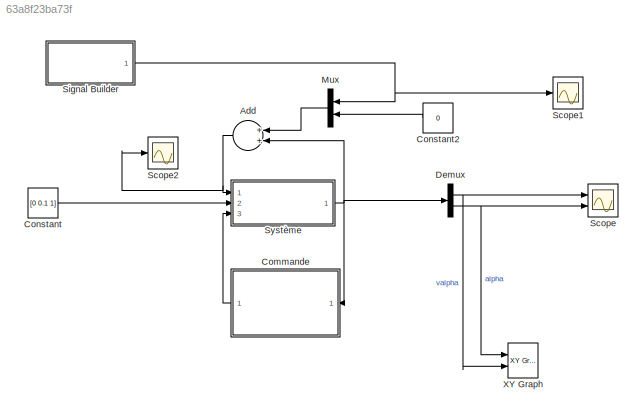
MODEL slx_63a8f23ba73f
KIND model
CONFIG AbsTol = auto
CONFIG FixedStep = 0.01
CONFIG MaxStep = auto
CONFIG MinStep = auto
CONFIG RelTol = 1e-3
CONFIG SampleTimeConstraint = Unconstrained
CONFIG Solver = FixedStepAuto
CONFIG SolverMode = Auto
CONFIG SolverName = FixedStepAuto
CONFIG StartTime = 0.0
CONFIG StopTime = 100
BLOCK [Sum] Add
  InputSameDT = off
  OutDataTypeStr = Inherit: Inherit via internal rule
  Ports = [2, 1]
  SaturateOnIntegerOverflow = off
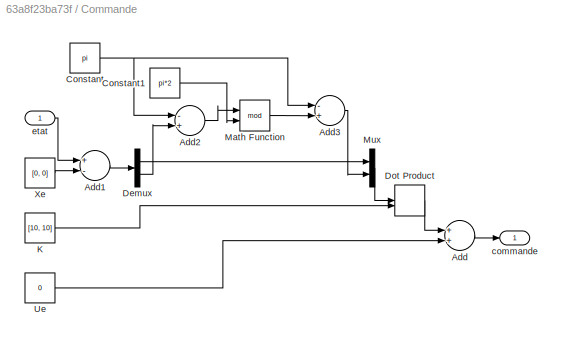
BLOCK [SubSystem] Commande
  Ports = [1, 1]
  RequestExecContextInheritance = off
  Variant = off
BLOCK [Sum] Commande/Add
  InputSameDT = off
  OutDataTypeStr = Inherit: Inherit via internal rule
  Ports = [2, 1]
  SaturateOnIntegerOverflow = off
BLOCK [Sum] Commande/Add1
  InputSameDT = off
  Inputs = +-
  OutDataTypeStr = Inherit: Inherit via internal rule
  Ports = [2, 1]
  SaturateOnIntegerOverflow = off
BLOCK [Sum] Commande/Add2
  InputSameDT = off
  Inputs = -+
  OutDataTypeStr = Inherit: Inherit via internal rule
  Ports = [2, 1]
  SaturateOnIntegerOverflow = off
BLOCK [Sum] Commande/Add3
  InputSameDT = off
  Inputs = -+
  OutDataTypeStr = Inherit: Inherit via internal rule
  Ports = [2, 1]
  SaturateOnIntegerOverflow = off
BLOCK [Constant] Commande/Constant
  Value = pi
BLOCK [Constant] Commande/Constant1
  Value = pi*2
BLOCK [Demux] Commande/Demux
  DisplayOption = bar
  Outputs = 2
  Ports = [1, 2]
BLOCK [DotProduct] Commande/Dot Product
  OutDataTypeStr = Inherit: Inherit via internal rule
BLOCK [Constant] Commande/K
  Value = [10, 10]
BLOCK [Math] Commande/Math Function
  Operator = mod
  Ports = [2, 1]
BLOCK [Mux] Commande/Mux
  DisplayOption = bar
  Inputs = 2
  Ports = [2, 1]
BLOCK [Constant] Commande/Ue
  Value = 0
BLOCK [Constant] Commande/Xe
  Value = [0, 0]
BLOCK [Outport] Commande/commande
  IconDisplay = Port number
BLOCK [Inport] Commande/etat
  IconDisplay = Port number
BLOCK [Constant] Constant
  Value = [0 0.1 1]
BLOCK [Constant] Constant2
  Value = 0
BLOCK [Demux] Demux
  DisplayOption = bar
  Outputs = 2
  Ports = [1, 2]
BLOCK [Mux] Mux
  DisplayOption = bar
  Inputs = 2
  Ports = [2, 1]
BLOCK [Scope] Scope
  NumInputPorts = 2
  Ports = [2]
  ScopeSpecificationString = Simulink.scopes.TimeScopeBlockCfg('CurrentConfiguration', extmgr.ConfigurationSet(extmgr.Configuration('Core','General UI',true),extmgr.Configuration('Core','Source UI',true),extmgr.Configuration('Sources','WiredSimulink',true),extmgr.Configuration('Visuals','Time Domain',true,'SerializedDisplays',{struct('MinYLimReal','-9.22536','MaxYLimReal','83.01264','YLabelReal','','MinYLimMag','0.00000','Max...<+2054ch>
BLOCK [Scope] Scope1
  Ports = [1]
  ScopeSpecificationString = Simulink.scopes.TimeScopeBlockCfg('CurrentConfiguration', extmgr.ConfigurationSet(extmgr.Configuration('Core','General UI',true),extmgr.Configuration('Core','Source UI',true),extmgr.Configuration('Sources','WiredSimulink',true,'DataLoggingVariableName','ScopeData1'),extmgr.Configuration('Visuals','Time Domain',true,'SerializedDisplays',{struct('MinYLimReal','-0.47375','MaxYLimReal','4.26375','YLab...<+1402ch>
BLOCK [Scope] Scope2
  Ports = [1]
  ScopeSpecificationString = Simulink.scopes.TimeScopeBlockCfg('CurrentConfiguration', extmgr.ConfigurationSet(extmgr.Configuration('Core','General UI',true),extmgr.Configuration('Core','Source UI',true),extmgr.Configuration('Sources','WiredSimulink',true,'DataLoggingVariableName','ScopeData1'),extmgr.Configuration('Visuals','Time Domain',true,'SerializedDisplays',{struct('MinYLimReal','-2.76881','MaxYLimReal','18.48973','YLa...<+1405ch>
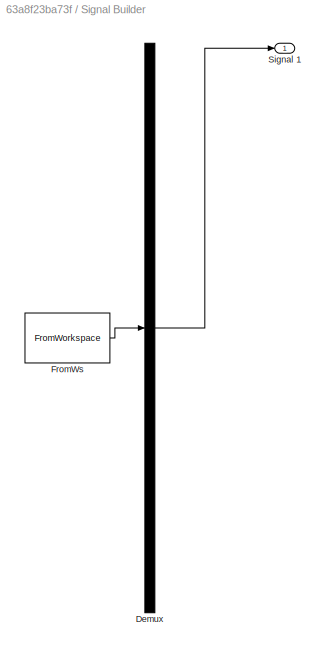
BLOCK [SubSystem] Signal Builder
  ClipboardFcn = sigbuilder_block('clipboard');
  CloseFcn = sigbuilder_block('close');
  ContinueFcn = sigbuilder_block('continue');
  CopyFcn = sigbuilder_block('copy');
  DeleteFcn = sigbuilder_block('delete');
  LoadFcn = sigbuilder_block('load',[665.432 184.168 563.116 385.011 ]);
  MaskHideContents = on
  ModelCloseFcn = sigbuilder_block('modelClose');
  NameChangeFcn = sigbuilder_block('namechange');
  OpenFcn = sigbuilder_block('open',[437.305 199.326 550.989 400.168 ]);
  PauseFcn = sigbuilder_block('pause');
  Ports = [0, 1]
  PreSaveFcn = sigbuilder_block('preSave');
  RequestExecContextInheritance = off
  StartFcn = sigbuilder_block('start');
  StopFcn = sigbuilder_block('stop');
  Tag = STV Subsys
  Variant = off
BLOCK [Demux] Signal Builder/Demux
  Outputs = 1
  Ports = [1, 1]
  Tag = STV Demux
BLOCK [FromWorkspace] Signal Builder/FromWs
  SampleTime = 0
  Tag = STV FromWs
  VariableName = tuvar
  ZeroCross = on
BLOCK [Outport] Signal Builder/Signal 1
  IconDisplay = Port number
  Tag = STV Outport
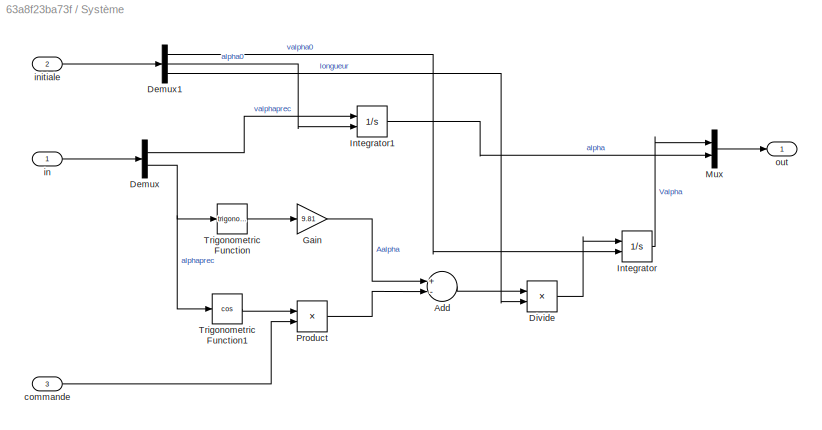
BLOCK [SubSystem] Système
  Ports = [3, 1]
  RequestExecContextInheritance = off
  Variant = off
BLOCK [Sum] Système/Add
  InputSameDT = off
  Inputs = +-
  OutDataTypeStr = Inherit: Inherit via internal rule
  Ports = [2, 1]
  SaturateOnIntegerOverflow = off
BLOCK [Demux] Système/Demux
  DisplayOption = bar
  Outputs = 2
  Ports = [1, 2]
BLOCK [Demux] Système/Demux1
  DisplayOption = bar
  Outputs = 3
  Ports = [1, 3]
BLOCK [Product] Système/Divide
  InputSameDT = off
  Inputs = */
  OutDataTypeStr = Inherit: Inherit via internal rule
  Ports = [2, 1]
  RndMeth = Floor
  SaturateOnIntegerOverflow = off
BLOCK [Gain] Système/Gain
  Gain = 9.81
  OutDataTypeStr = Inherit: Inherit via internal rule
  ParamDataTypeStr = Inherit: Inherit via internal rule
  SaturateOnIntegerOverflow = off
BLOCK [Integrator] Système/Integrator
  InitialConditionSource = external
  Ports = [2, 1]
BLOCK [Integrator] Système/Integrator1
  InitialCondition = pi
  InitialConditionSource = external
  Ports = [2, 1]
BLOCK [Mux] Système/Mux
  DisplayOption = bar
  Inputs = 2
  Ports = [2, 1]
BLOCK [Product] Système/Product
  InputSameDT = off
  OutDataTypeStr = Inherit: Inherit via internal rule
  Ports = [2, 1]
  RndMeth = Floor
  SaturateOnIntegerOverflow = off
BLOCK [Trigonometry] Système/Trigonometric Function
  Ports = [1, 1]
BLOCK [Trigonometry] Système/Trigonometric Function1
  Operator = cos
  Ports = [1, 1]
BLOCK [Inport] Système/commande
  IconDisplay = Port number
  Port = 3
BLOCK [Inport] Système/in
  IconDisplay = Port number
BLOCK [Inport] Système/initiale
  IconDisplay = Port number
  Port = 2
BLOCK [Outport] Système/out
  IconDisplay = Port number
BLOCK [Reference] XY Graph  REF=simulink/Sinks/XY Graph
  Ports = [2]
  SourceBlock = simulink/Sinks/XY Graph
  SourceType = XY scope.
NET Add:1 -> Scope2:1, Système:1
LINE Commande/Add1:1 -> Commande/Demux:1
LINE Commande/Add2:1 -> Commande/Math Function:1
LINE Commande/Add3:1 -> Commande/Mux:2
LINE Commande/Add:1 -> Commande/commande:1
LINE Commande/Constant1:1 -> Commande/Math Function:2
NET Commande/Constant:1 -> Commande/Add2:1, Commande/Add3:1
LINE Commande/Demux:1 -> Commande/Mux:1
LINE Commande/Demux:2 -> Commande/Add2:2
LINE Commande/Dot Product:1 -> Commande/Add:1
LINE Commande/K:1 -> Commande/Dot Product:2
LINE Commande/Math Function:1 -> Commande/Add3:2
LINE Commande/Mux:1 -> Commande/Dot Product:1
LINE Commande/Ue:1 -> Commande/Add:2
LINE Commande/Xe:1 -> Commande/Add1:2
LINE Commande/etat:1 -> Commande/Add1:1
LINE Commande:1 -> Système:3
LINE Constant2:1 -> Mux:2
LINE Constant:1 -> Système:2
NET Demux:1 -> Scope:1, XY Graph:2
NET Demux:2 -> Scope:2, XY Graph:1
LINE Mux:1 -> Add:1
NET Signal Builder:1 -> Mux:1, Scope1:1
LINE Système/Add:1 -> Système/Divide:1
LINE Système/Demux1:1 -> Système/Integrator:2
LINE Système/Demux1:2 -> Système/Integrator1:2
LINE Système/Demux1:3 -> Système/Divide:2
LINE Système/Demux:1 -> Système/Integrator1:1
NET Système/Demux:2 -> Système/Trigonometric Function1:1, Système/Trigonometric Function:1
LINE Système/Divide:1 -> Système/Integrator:1
LINE Système/Gain:1 -> Système/Add:1
LINE Système/Integrator1:1 -> Système/Mux:2
LINE Système/Integrator:1 -> Système/Mux:1
LINE Système/Mux:1 -> Système/out:1
LINE Système/Product:1 -> Système/Add:2
LINE Système/Trigonometric Function1:1 -> Système/Product:1
LINE Système/Trigonometric Function:1 -> Système/Gain:1
LINE Système/commande:1 -> Système/Product:2
LINE Système/in:1 -> Système/Demux:1
LINE Système/initiale:1 -> Système/Demux1:1
NET Système:1 -> Add:2, Commande:1, Demux:1
note: NET lines group one-source signal fan-out (src -> all destinations, sorted); 1:1 wires keep LINE
